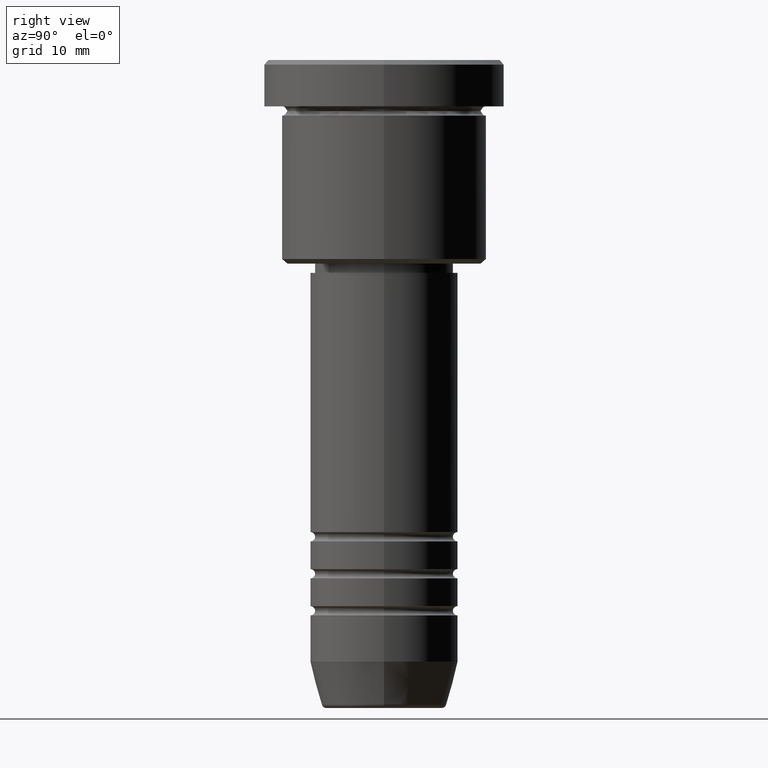
[diagram: clean part render]
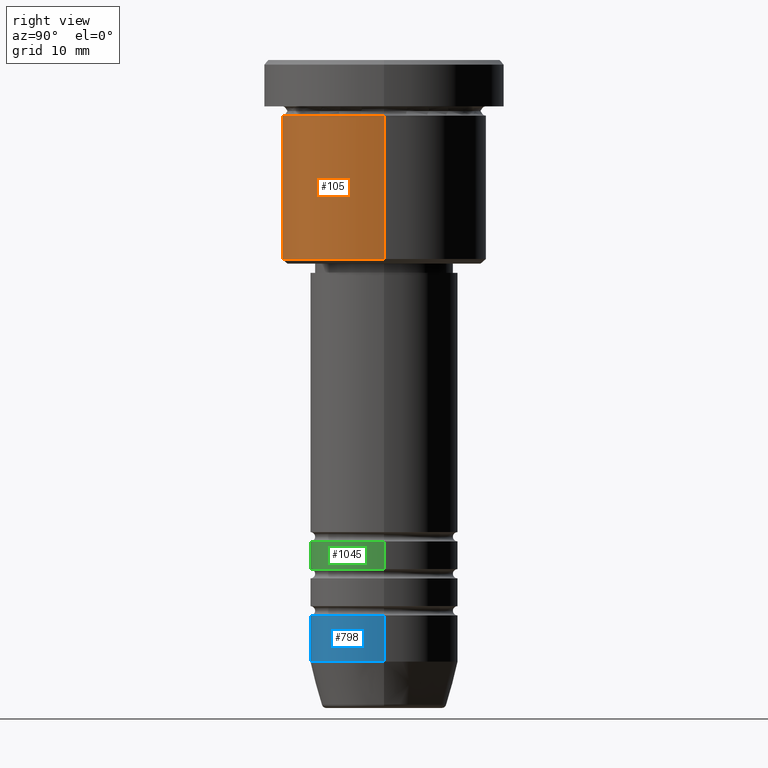
[diagram: same view with three faces highlighted in distinct colors, each labeled with its STEP entity id]
A machine part, right view with three faces highlighted in distinct colors.
Their STEP definitions:

[orange] entity #105 — the highlighted cylindrical surface (partial cylindrical patch) has radius 11 mm, axis along (-0, -0, 1).
#1 = DIRECTION ( 'NONE',  ( 1.000000000000000000, 0.000000000000000000, 0.000000000000000000 ) ) ;
#14 = DIRECTION ( 'NONE',  ( 1.000000000000000000, 0.000000000000000000, 0.000000000000000000 ) ) ;
#24 = CARTESIAN_POINT ( 'NONE',  ( 11.00000000000000000, 0.000000000000000000, -5.999999999999999112 ) ) ;
#52 = EDGE_CURVE ( 'NONE', #587, #705, #870, .T. ) ;
#105 = ADVANCED_FACE ( 'NONE', ( #848 ), #1113, .T. ) ;
#139 = ORIENTED_EDGE ( 'NONE', *, *, #921, .T. ) ;
#274 = DIRECTION ( 'NONE',  ( -0.000000000000000000, -0.000000000000000000, 1.000000000000000000 ) ) ;
#301 = EDGE_CURVE ( 'NONE', #980, #690, #459, .T. ) ;
#305 = DIRECTION ( 'NONE',  ( -0.000000000000000000, -0.000000000000000000, 1.000000000000000000 ) ) ;
#323 = AXIS2_PLACEMENT_3D ( 'NONE', #1026, #382, #1 ) ;
#353 = CARTESIAN_POINT ( 'NONE',  ( -11.00000000000000000, 1.347111479062088405E-15, -5.999999999999999112 ) ) ;
#382 = DIRECTION ( 'NONE',  ( -0.000000000000000000, -0.000000000000000000, 1.000000000000000000 ) ) ;
#405 = CARTESIAN_POINT ( 'NONE',  ( 0.000000000000000000, 0.000000000000000000, 0.000000000000000000 ) ) ;
#444 = VECTOR ( 'NONE', #961, 1000.000000000000000 ) ;
#459 = LINE ( 'NONE', #731, #845 ) ;
#544 = CARTESIAN_POINT ( 'NONE',  ( -11.00000000000000000, 1.347111479062088405E-15, -21.50000000000000355 ) ) ;
#587 = VERTEX_POINT ( 'NONE', #958 ) ;
#625 = CIRCLE ( 'NONE', #323, 11.00000000000000000 ) ;
#653 = DIRECTION ( 'NONE',  ( -1.000000000000000000, 0.000000000000000000, 0.000000000000000000 ) ) ;
#690 = VERTEX_POINT ( 'NONE', #353 ) ;
#705 = VERTEX_POINT ( 'NONE', #24 ) ;
#722 = AXIS2_PLACEMENT_3D ( 'NONE', #747, #305, #653 ) ;
#731 = CARTESIAN_POINT ( 'NONE',  ( -11.00000000000000000, 1.347111479062088405E-15, 0.000000000000000000 ) ) ;
#735 = AXIS2_PLACEMENT_3D ( 'NONE', #405, #1020, #14 ) ;
#747 = CARTESIAN_POINT ( 'NONE',  ( 0.000000000000000000, 0.000000000000000000, -21.50000000000000355 ) ) ;
#797 = CIRCLE ( 'NONE', #722, 11.00000000000000000 ) ;
#845 = VECTOR ( 'NONE', #274, 1000.000000000000000 ) ;
#848 = FACE_OUTER_BOUND ( 'NONE', #1017, .T. ) ;
#870 = LINE ( 'NONE', #950, #444 ) ;
#904 = ORIENTED_EDGE ( 'NONE', *, *, #1033, .F. ) ;
#921 = EDGE_CURVE ( 'NONE', #980, #587, #797, .T. ) ;
#950 = CARTESIAN_POINT ( 'NONE',  ( 11.00000000000000000, 0.000000000000000000, 0.000000000000000000 ) ) ;
#958 = CARTESIAN_POINT ( 'NONE',  ( 11.00000000000000000, 0.000000000000000000, -21.50000000000000355 ) ) ;
#961 = DIRECTION ( 'NONE',  ( -0.000000000000000000, -0.000000000000000000, 1.000000000000000000 ) ) ;
#980 = VERTEX_POINT ( 'NONE', #544 ) ;
#992 = ORIENTED_EDGE ( 'NONE', *, *, #301, .F. ) ;
#1017 = EDGE_LOOP ( 'NONE', ( #992, #139, #1100, #904 ) ) ;
#1020 = DIRECTION ( 'NONE',  ( -0.000000000000000000, -0.000000000000000000, 1.000000000000000000 ) ) ;
#1026 = CARTESIAN_POINT ( 'NONE',  ( 0.000000000000000000, 0.000000000000000000, -5.999999999999999112 ) ) ;
#1033 = EDGE_CURVE ( 'NONE', #690, #705, #625, .T. ) ;
#1100 = ORIENTED_EDGE ( 'NONE', *, *, #52, .T. ) ;
#1113 = CYLINDRICAL_SURFACE ( 'NONE', #735, 11.00000000000000000 ) ;

[blue] entity #798 — the highlighted cylindrical surface (partial cylindrical patch) has radius 8 mm, axis along (-0, -0, 1).
#28 = AXIS2_PLACEMENT_3D ( 'NONE', #265, #515, #901 ) ;
#32 = DIRECTION ( 'NONE',  ( 1.000000000000000000, 0.000000000000000000, 0.000000000000000000 ) ) ;
#104 = VECTOR ( 'NONE', #314, 1000.000000000000000 ) ;
#119 = EDGE_CURVE ( 'NONE', #273, #844, #615, .T. ) ;
#126 = CIRCLE ( 'NONE', #723, 8.000000000000000000 ) ;
#137 = LINE ( 'NONE', #331, #450 ) ;
#215 = DIRECTION ( 'NONE',  ( -0.000000000000000000, -0.000000000000000000, 1.000000000000000000 ) ) ;
#265 = CARTESIAN_POINT ( 'NONE',  ( 0.000000000000000000, 0.000000000000000000, 0.000000000000000000 ) ) ;
#273 = VERTEX_POINT ( 'NONE', #892 ) ;
#291 = ORIENTED_EDGE ( 'NONE', *, *, #119, .T. ) ;
#314 = DIRECTION ( 'NONE',  ( -0.000000000000000000, -0.000000000000000000, 1.000000000000000000 ) ) ;
#321 = CARTESIAN_POINT ( 'NONE',  ( 8.000000000000000000, 0.000000000000000000, 0.000000000000000000 ) ) ;
#331 = CARTESIAN_POINT ( 'NONE',  ( -8.000000000000000000, 9.797174393178825657E-16, 0.000000000000000000 ) ) ;
#389 = ORIENTED_EDGE ( 'NONE', *, *, #1052, .F. ) ;
#433 = CYLINDRICAL_SURFACE ( 'NONE', #28, 8.000000000000000000 ) ;
#450 = VECTOR ( 'NONE', #595, 1000.000000000000000 ) ;
#500 = LINE ( 'NONE', #321, #104 ) ;
#515 = DIRECTION ( 'NONE',  ( -0.000000000000000000, -0.000000000000000000, 1.000000000000000000 ) ) ;
#525 = EDGE_LOOP ( 'NONE', ( #389, #291, #679, #1174 ) ) ;
#577 = CARTESIAN_POINT ( 'NONE',  ( 0.000000000000000000, 0.000000000000000000, -65.00000000000000000 ) ) ;
#595 = DIRECTION ( 'NONE',  ( -0.000000000000000000, -0.000000000000000000, 1.000000000000000000 ) ) ;
#615 = CIRCLE ( 'NONE', #976, 8.000000000000000000 ) ;
#640 = CARTESIAN_POINT ( 'NONE',  ( 8.000000000000000000, 0.000000000000000000, -65.00000000000000000 ) ) ;
#679 = ORIENTED_EDGE ( 'NONE', *, *, #702, .T. ) ;
#687 = VERTEX_POINT ( 'NONE', #890 ) ;
#702 = EDGE_CURVE ( 'NONE', #844, #687, #500, .T. ) ;
#723 = AXIS2_PLACEMENT_3D ( 'NONE', #861, #215, #873 ) ;
#798 = ADVANCED_FACE ( 'NONE', ( #808 ), #433, .T. ) ;
#808 = FACE_OUTER_BOUND ( 'NONE', #525, .T. ) ;
#828 = CARTESIAN_POINT ( 'NONE',  ( -8.000000000000000000, 9.797174393178825657E-16, -60.00000000000000711 ) ) ;
#844 = VERTEX_POINT ( 'NONE', #640 ) ;
#857 = DIRECTION ( 'NONE',  ( -0.000000000000000000, -0.000000000000000000, 1.000000000000000000 ) ) ;
#861 = CARTESIAN_POINT ( 'NONE',  ( 0.000000000000000000, 0.000000000000000000, -60.00000000000000711 ) ) ;
#873 = DIRECTION ( 'NONE',  ( 1.000000000000000000, 0.000000000000000000, 0.000000000000000000 ) ) ;
#890 = CARTESIAN_POINT ( 'NONE',  ( 8.000000000000000000, 0.000000000000000000, -60.00000000000000711 ) ) ;
#892 = CARTESIAN_POINT ( 'NONE',  ( -8.000000000000000000, 9.797174393178825657E-16, -65.00000000000000000 ) ) ;
#901 = DIRECTION ( 'NONE',  ( 1.000000000000000000, 0.000000000000000000, 0.000000000000000000 ) ) ;
#976 = AXIS2_PLACEMENT_3D ( 'NONE', #577, #857, #32 ) ;
#997 = VERTEX_POINT ( 'NONE', #828 ) ;
#1052 = EDGE_CURVE ( 'NONE', #273, #997, #137, .T. ) ;
#1158 = EDGE_CURVE ( 'NONE', #997, #687, #126, .T. ) ;
#1174 = ORIENTED_EDGE ( 'NONE', *, *, #1158, .F. ) ;

[green] entity #1045 — the highlighted cylindrical surface (partial cylindrical patch) has radius 8 mm, axis along (-0, -0, 1).
#15 = VERTEX_POINT ( 'NONE', #85 ) ;
#34 = CARTESIAN_POINT ( 'NONE',  ( -8.000000000000001776, 9.797174393178827630E-16, 0.000000000000000000 ) ) ;
#35 = DIRECTION ( 'NONE',  ( -0.000000000000000000, -0.000000000000000000, 1.000000000000000000 ) ) ;
#36 = EDGE_CURVE ( 'NONE', #15, #133, #859, .T. ) ;
#49 = DIRECTION ( 'NONE',  ( 1.000000000000000000, 0.000000000000000000, 0.000000000000000000 ) ) ;
#68 = ORIENTED_EDGE ( 'NONE', *, *, #1167, .F. ) ;
#85 = CARTESIAN_POINT ( 'NONE',  ( -8.000000000000003553, 9.797174393178829602E-16, -54.99999999999999289 ) ) ;
#133 = VERTEX_POINT ( 'NONE', #570 ) ;
#141 = VECTOR ( 'NONE', #451, 1000.000000000000000 ) ;
#154 = VECTOR ( 'NONE', #221, 1000.000000000000000 ) ;
#181 = CIRCLE ( 'NONE', #1043, 8.000000000000003553 ) ;
#197 = VERTEX_POINT ( 'NONE', #556 ) ;
#221 = DIRECTION ( 'NONE',  ( -0.000000000000000000, -0.000000000000000000, 1.000000000000000000 ) ) ;
#341 = AXIS2_PLACEMENT_3D ( 'NONE', #483, #35, #347 ) ;
#347 = DIRECTION ( 'NONE',  ( 1.000000000000000000, 0.000000000000000000, 0.000000000000000000 ) ) ;
#362 = ORIENTED_EDGE ( 'NONE', *, *, #36, .F. ) ;
#427 = LINE ( 'NONE', #728, #141 ) ;
#451 = DIRECTION ( 'NONE',  ( -0.000000000000000000, -0.000000000000000000, 1.000000000000000000 ) ) ;
#483 = CARTESIAN_POINT ( 'NONE',  ( 0.000000000000000000, 0.000000000000000000, -52.00000000000000000 ) ) ;
#506 = ORIENTED_EDGE ( 'NONE', *, *, #818, .T. ) ;
#556 = CARTESIAN_POINT ( 'NONE',  ( 8.000000000000003553, 0.000000000000000000, -54.99999999999999289 ) ) ;
#559 = VERTEX_POINT ( 'NONE', #1006 ) ;
#570 = CARTESIAN_POINT ( 'NONE',  ( -8.000000000000000000, 9.797174393178827630E-16, -52.00000000000000000 ) ) ;
#575 = CYLINDRICAL_SURFACE ( 'NONE', #985, 8.000000000000001776 ) ;
#583 = FACE_OUTER_BOUND ( 'NONE', #630, .T. ) ;
#630 = EDGE_LOOP ( 'NONE', ( #362, #793, #506, #68 ) ) ;
#683 = DIRECTION ( 'NONE',  ( -0.000000000000000000, -0.000000000000000000, 1.000000000000000000 ) ) ;
#728 = CARTESIAN_POINT ( 'NONE',  ( 8.000000000000001776, 0.000000000000000000, 0.000000000000000000 ) ) ;
#752 = DIRECTION ( 'NONE',  ( -0.000000000000000000, -0.000000000000000000, 1.000000000000000000 ) ) ;
#765 = CARTESIAN_POINT ( 'NONE',  ( 0.000000000000000000, 0.000000000000000000, -54.99999999999999289 ) ) ;
#793 = ORIENTED_EDGE ( 'NONE', *, *, #940, .T. ) ;
#818 = EDGE_CURVE ( 'NONE', #197, #559, #427, .T. ) ;
#859 = LINE ( 'NONE', #34, #154 ) ;
#940 = EDGE_CURVE ( 'NONE', #15, #197, #181, .T. ) ;
#985 = AXIS2_PLACEMENT_3D ( 'NONE', #1129, #683, #49 ) ;
#1006 = CARTESIAN_POINT ( 'NONE',  ( 8.000000000000000000, 0.000000000000000000, -52.00000000000000000 ) ) ;
#1043 = AXIS2_PLACEMENT_3D ( 'NONE', #765, #752, #1093 ) ;
#1045 = ADVANCED_FACE ( 'NONE', ( #583 ), #575, .T. ) ;
#1083 = CIRCLE ( 'NONE', #341, 8.000000000000000000 ) ;
#1093 = DIRECTION ( 'NONE',  ( 1.000000000000000000, 0.000000000000000000, 0.000000000000000000 ) ) ;
#1129 = CARTESIAN_POINT ( 'NONE',  ( 0.000000000000000000, 0.000000000000000000, 0.000000000000000000 ) ) ;
#1167 = EDGE_CURVE ( 'NONE', #133, #559, #1083, .T. ) ;